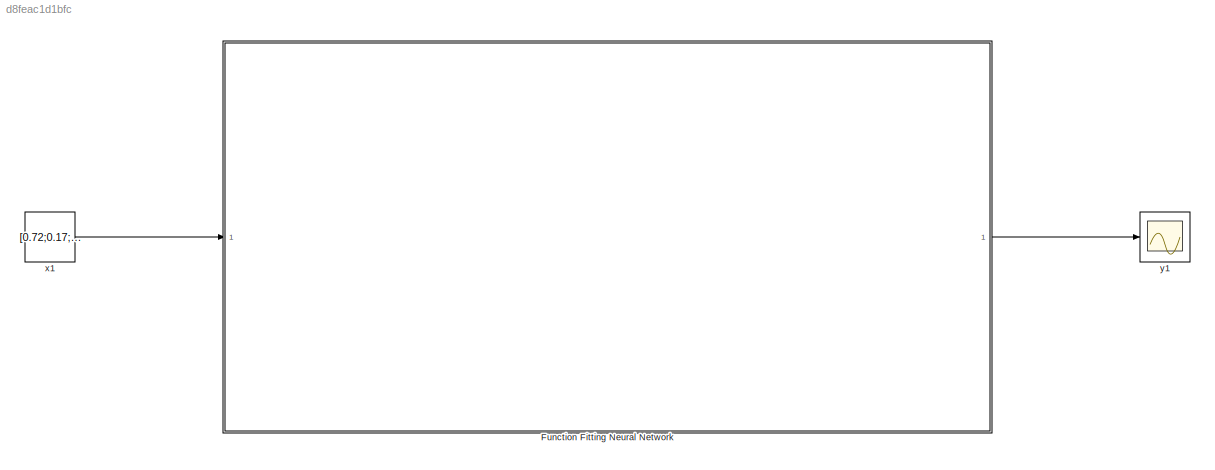
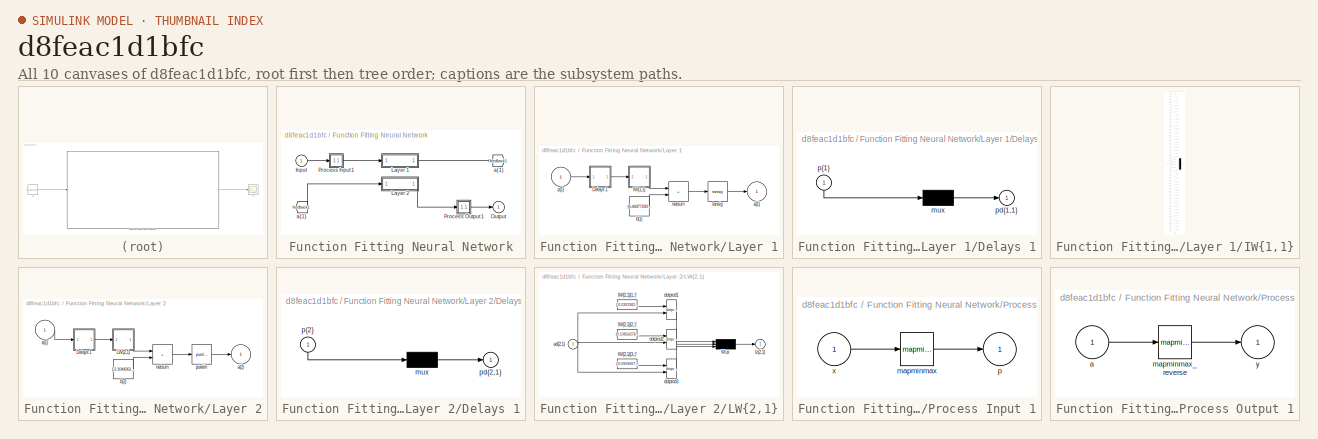
[diagram: thumbnail index - all 10 canvases of the model, root first then tree order]
MODEL slx_d8feac1d1bfc
KIND model
CONFIG AbsTol = auto
CONFIG EnableMultiTasking = off
CONFIG FixedStep = auto
CONFIG MaxStep = auto
CONFIG MinStep = auto
CONFIG RelTol = 1e-3
CONFIG SampleTimeConstraint = Unconstrained
CONFIG SolverName = VariableStepAuto
CONFIG StartTime = 0.0
CONFIG StopTime = 10.0
BLOCK [SubSystem] Function Fitting Neural Network
  Ports = [1, 1]
  RequestExecContextInheritance = off
BLOCK [From] Function Fitting Neural Network/ a{1} 
  GotoTag = feedback1
BLOCK [Inport] Function Fitting Neural Network/Input
  PortDimensions = 5
BLOCK [SubSystem] Function Fitting Neural Network/Layer 1
  Ports = [1, 1]
  RequestExecContextInheritance = off
BLOCK [SubSystem] Function Fitting Neural Network/Layer 1/Delays 1
  Ports = [1, 1]
  RequestExecContextInheritance = off
BLOCK [Mux] Function Fitting Neural Network/Layer 1/Delays 1/mux
  Inputs = 1
  Ports = [1, 1]
BLOCK [Outport] Function Fitting Neural Network/Layer 1/Delays 1/pd{1,1}
BLOCK [Inport] Function Fitting Neural Network/Layer 1/Delays 1/p{1}
  NameLocation = left
  PortDimensions = 5
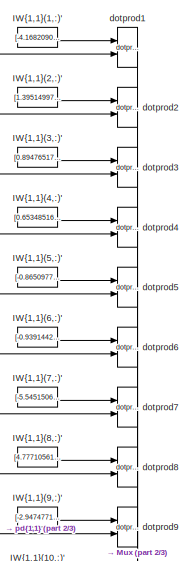
[diagram: Function Fitting Neural Network/Layer 1/IW{1,1} - part 1/3, top center region]
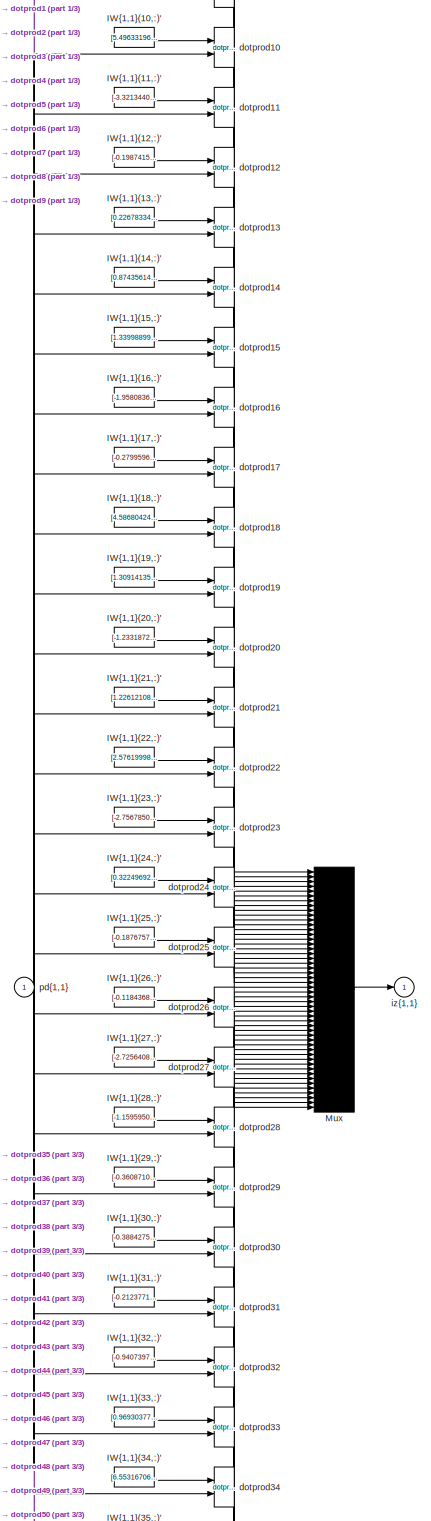
[diagram: Function Fitting Neural Network/Layer 1/IW{1,1} - part 2/3, full width, middle band]
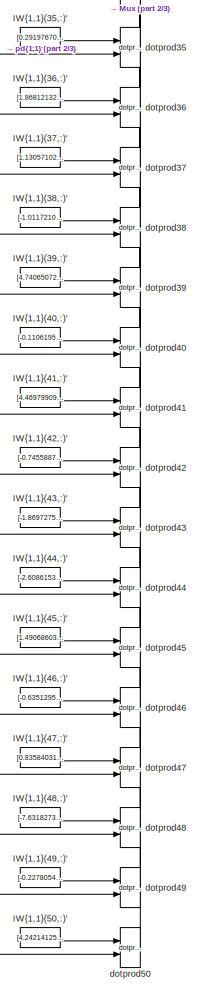
[diagram: Function Fitting Neural Network/Layer 1/IW{1,1} - part 3/3, bottom center region]
BLOCK [SubSystem] Function Fitting Neural Network/Layer 1/IW{1,1}
  Ports = [1, 1]
  RequestExecContextInheritance = off
BLOCK [Constant] Function Fitting Neural Network/Layer 1/IW{1,1}/IW{1,1}(1,:)'
  Value = [-4.16820907363957271485332967131398618221282958984375;2.541882786773931091062195264385081827640533447265625;1.581768027503744900030824283021502196788787841796875;4.2469789752246782654765411280095577239990234375;1.9557852462476734700658198562450706958770751953125]
BLOCK [Constant] Function Fitting Neural Network/Layer 1/IW{1,1}/IW{1,1}(10,:)'
  Value = [5.49633196134341606153839165926910936832427978515625;10.6847901980329762494648093706928193569183349609375;4.15494190944242003382669281563721597194671630859375;-3.5444552287029349457725402317009866237640380859375;-1.8130858594148850926330851507373154163360595703125]
BLOCK [Constant] Function Fitting Neural Network/Layer 1/IW{1,1}/IW{1,1}(11,:)'
  Value = [-3.32134401228920861370852435356937348842620849609375;-2.595258521102207449615661971620284020900726318359375;-1.531210754243391480855507325031794607639312744140625;1.22030320588501250966828592936508357524871826171875;-3.8096805860452196412779812817461788654327392578125]
BLOCK [Constant] Function Fitting Neural Network/Layer 1/IW{1,1}/IW{1,1}(12,:)'
  Value = [-0.1987415091123521104776727952412329614162445068359375;-1.290711537426080024459906780975870788097381591796875;0.757800568198310653400540104485116899013519287109375;-2.859508214847902962674197624437510967254638671875;3.64097821475625149645338751724921166896820068359375]
BLOCK [Constant] Function Fitting Neural Network/Layer 1/IW{1,1}/IW{1,1}(13,:)'
  Value = [0.22678334136748945493167184395133517682552337646484375;0.02131870179638095663676722324453294277191162109375;0.73231231611587632723825436187325976788997650146484375;0.83702749589057867662944545372738502919673919677734375;0.5844559610654267434171060813241638243198394775390625]
BLOCK [Constant] Function Fitting Neural Network/Layer 1/IW{1,1}/IW{1,1}(14,:)'
  Value = [0.8743561483243229570661014804500155150890350341796875;-0.632170059606047995970357078476808965206146240234375;-1.59700931096406595344205925357528030872344970703125;4.7894741583909468118918084655888378620147705078125;2.46183498840396008944253480876795947551727294921875]
BLOCK [Constant] Function Fitting Neural Network/Layer 1/IW{1,1}/IW{1,1}(15,:)'
  Value = [1.339988998032004996474597646738402545452117919921875;0.9628984406166181120312330676824785768985748291015625;-3.478382626160154256211853862623684108257293701171875;-0.366376396121907088598845803062431514263153076171875;-2.692552191236864178591758900438435375690460205078125]
BLOCK [Constant] Function Fitting Neural Network/Layer 1/IW{1,1}/IW{1,1}(16,:)'
  Value = [-1.958083685170446397449950381997041404247283935546875;0.1133946588584020809253871675537084229290485382080078125;0.2221054337253805244234428073468734510242938995361328125;0.27854004055729308930722254444845020771026611328125;-1.070004618512334193525248338119126856327056884765625]
BLOCK [Constant] Function Fitting Neural Network/Layer 1/IW{1,1}/IW{1,1}(17,:)'
  Value = [-0.2799596116653455535328021142049692571163177490234375;-0.005497179875329660792004915492725558578968048095703125;-0.377164780892429607472848829274880699813365936279296875;0.8694378496984371818001591236679814755916595458984375;-0.42709697135323576588916694163344800472259521484375]
BLOCK [Constant] Function Fitting Neural Network/Layer 1/IW{1,1}/IW{1,1}(18,:)'
  Value = [4.58680424429156818888486668583936989307403564453125;5.4557839825569960368056854349561035633087158203125;1.1447405792235254562427826385828666388988494873046875;-1.9638518051656859153553114083479158580303192138671875;-0.1632018472449195123363807624627952463924884796142578125]
BLOCK [Constant] Function Fitting Neural Network/Layer 1/IW{1,1}/IW{1,1}(19,:)'
  Value = [1.3091413552815287513197972657508216798305511474609375;-2.11466509291143012205793638713657855987548828125;5.2851502139083752496162560419179499149322509765625;3.582723940179032506847534023108892142772674560546875;-3.97580699981327700953670500894077122211456298828125]
BLOCK [Constant] Function Fitting Neural Network/Layer 1/IW{1,1}/IW{1,1}(2,:)'
  Value = [1.3951499731247967162062195711769163608551025390625;-0.454546945694866144638268679045722819864749908447265625;0.8682215533063455392692731038550846278667449951171875;-1.26925216252252948123668829794041812419891357421875;-0.9378314475941886829701843453221954405307769775390625]
BLOCK [Constant] Function Fitting Neural Network/Layer 1/IW{1,1}/IW{1,1}(20,:)'
  Value = [-1.233187287176878754735298571176826953887939453125;-1.4077532946106270372865765239112079143524169921875;1.1021642724863742746066463951137848198413848876953125;-0.94779301522668590873621496939449571073055267333984375;0.930487688454931127779445887426845729351043701171875]
BLOCK [Constant] Function Fitting Neural Network/Layer 1/IW{1,1}/IW{1,1}(21,:)'
  Value = [1.22612108752971860070601906045340001583099365234375;2.69983180142598566675360416411422193050384521484375;-1.147539396316329174396742018871009349822998046875;1.9219087266635839217343573182006366550922393798828125;1.77129702303915426142566502676345407962799072265625]
BLOCK [Constant] Function Fitting Neural Network/Layer 1/IW{1,1}/IW{1,1}(22,:)'
  Value = [2.57619998189668475419011883786879479885101318359375;2.7814793034058826748378123738802969455718994140625;2.629364630216236786708350336994044482707977294921875;3.114678192060041705957473823218606412410736083984375;3.946635244549082432996556235593743622303009033203125]
BLOCK [Constant] Function Fitting Neural Network/Layer 1/IW{1,1}/IW{1,1}(23,:)'
  Value = [-2.75678509810810368207967258058488368988037109375;-2.32537100274720831549757349421270191669464111328125;4.62781744877961198625371253001503646373748779296875;-5.69260200698623908266426951740868389606475830078125;0.8488659828669697926528669995605014264583587646484375]
BLOCK [Constant] Function Fitting Neural Network/Layer 1/IW{1,1}/IW{1,1}(24,:)'
  Value = [0.322496920127222475027650716583593748509883880615234375;-6.003187228239585948585954611189663410186767578125;2.62707939283803160179786573280580341815948486328125;-4.5417138627207283008146987413056194782257080078125;3.196162508098566501502091341535560786724090576171875]
BLOCK [Constant] Function Fitting Neural Network/Layer 1/IW{1,1}/IW{1,1}(25,:)'
  Value = [-0.18767576439800770504717775111203081905841827392578125;0.40464393299708945050952024757862091064453125;1.73934895877950079778884173720143735408782958984375;0.4223353302401624542739000389701686799526214599609375;-1.1431649890919430845315218903124332427978515625]
BLOCK [Constant] Function Fitting Neural Network/Layer 1/IW{1,1}/IW{1,1}(26,:)'
  Value = [-0.118436828106603553312226040361565537750720977783203125;0.20401237372271785464050708469585515558719635009765625;0.26808540451177964580864454546826891601085662841796875;0.0832457309078548923775286993986810557544231414794921875;-0.262187850409170086773968932902789674699306488037109375]
BLOCK [Constant] Function Fitting Neural Network/Layer 1/IW{1,1}/IW{1,1}(27,:)'
  Value = [-2.725640819478535537001562261139042675495147705078125;0.401858576410446144411281466091168113052845001220703125;-0.95192092135731354307637275269371457397937774658203125;4.26247019527412174255687205004505813121795654296875;1.4254596952144551469388034092844463884830474853515625]
BLOCK [Constant] Function Fitting Neural Network/Layer 1/IW{1,1}/IW{1,1}(28,:)'
  Value = [-1.1595950335184621593498377478681504726409912109375;-7.9454798056532656147510351729579269886016845703125;-6.12943650571449705211080072331242263317108154296875;1.562557414424370794137075790786184370517730712890625;0.5781485155962930999606896875775419175624847412109375]
BLOCK [Constant] Function Fitting Neural Network/Layer 1/IW{1,1}/IW{1,1}(29,:)'
  Value = [-0.360871082659472930398436574250808916985988616943359375;3.05133801884801858506079952348954975605010986328125;-1.3520547394716846412165978108532726764678955078125;-2.089162545783299851365200083819217979907989501953125;-4.46475682286495878514642754453234374523162841796875]
BLOCK [Constant] Function Fitting Neural Network/Layer 1/IW{1,1}/IW{1,1}(3,:)'
  Value = [0.89476517383032561081535050107049755752086639404296875;0.8873499367846318097718949502450414001941680908203125;-1.552682949233788800569300292409025132656097412109375;-1.03774745819400227020423699286766350269317626953125;2.0536673165297418819363883812911808490753173828125]
BLOCK [Constant] Function Fitting Neural Network/Layer 1/IW{1,1}/IW{1,1}(30,:)'
  Value = [-0.388427558663993532928060403719427995383739471435546875;-1.5257793007627824533045668431441299617290496826171875;0.42363845882158501776615366907208226621150970458984375;-1.6224729022383730381307032075710594654083251953125;-1.757736004617498792867991141974925994873046875]
BLOCK [Constant] Function Fitting Neural Network/Layer 1/IW{1,1}/IW{1,1}(31,:)'
  Value = [-0.212377128235736900574437413524719886481761932373046875;1.0749516481796745903665168953011743724346160888671875;1.89588464825657165846450880053453147411346435546875;1.6786779680107064560701246591634117066860198974609375;1.473424518024794682702349746250547468662261962890625]
BLOCK [Constant] Function Fitting Neural Network/Layer 1/IW{1,1}/IW{1,1}(32,:)'
  Value = [-0.9407397849058793948273660134873352944850921630859375;-1.0565271872013537457490883753052912652492523193359375;1.87886289528078709309966143337078392505645751953125;0.167231678050725474093951561371795833110809326171875;-0.61740511551444499094287721163709647953510284423828125]
BLOCK [Constant] Function Fitting Neural Network/Layer 1/IW{1,1}/IW{1,1}(33,:)'
  Value = [0.96930377720851568223991989725618623197078704833984375;-2.325129468629168361104575524223037064075469970703125;5.1538886883938577199160135933198034763336181640625;2.8992875333818002303587491041980683803558349609375;1.8585780866238525987910179537720978260040283203125]
BLOCK [Constant] Function Fitting Neural Network/Layer 1/IW{1,1}/IW{1,1}(34,:)'
  Value = [6.5531670657000606894371230737306177616119384765625;-5.08410219275545660622128707473166286945343017578125;-3.253748970965505638019976686337031424045562744140625;2.35577071587532937968489932245574891567230224609375;5.33846197858585558293498252169229090213775634765625]
BLOCK [Constant] Function Fitting Neural Network/Layer 1/IW{1,1}/IW{1,1}(35,:)'
  Value = [0.291976700599510918809897930259467102587223052978515625;-1.723612609539671769454116656561382114887237548828125;6.40082623967573116630092044943012297153472900390625;-0.0528696918814886007709219484240747988224029541015625;-0.2358166132735529385566763949100277386605739593505859375]
BLOCK [Constant] Function Fitting Neural Network/Layer 1/IW{1,1}/IW{1,1}(36,:)'
  Value = [1.8681213285954658687160190311260521411895751953125;0.19122903193814833056052293613902293145656585693359375;0.1448037667502071190739343364839442074298858642578125;0.61415362843576681850521481464966200292110443115234375;3.07305909206476624007109421654604375362396240234375]
BLOCK [Constant] Function Fitting Neural Network/Layer 1/IW{1,1}/IW{1,1}(37,:)'
  Value = [1.130571023129204544233061824343167245388031005859375;2.9798008028314253436974468058906495571136474609375;-1.24452371871822986548750122892670333385467529296875;0.831776806391783640748371908557601273059844970703125;-2.53562776690992119910106339375488460063934326171875]
BLOCK [Constant] Function Fitting Neural Network/Layer 1/IW{1,1}/IW{1,1}(38,:)'
  Value = [-1.01172104515173888472645558067597448825836181640625;-1.35552482255783868225762489601038396358489990234375;2.475178394160455042083412990905344486236572265625;-0.7616949455941954827409290373907424509525299072265625;-0.0326286165765984625952711439822451211512088775634765625]
BLOCK [Constant] Function Fitting Neural Network/Layer 1/IW{1,1}/IW{1,1}(39,:)'
  Value = [4.74065072477746607404469614266417920589447021484375;4.5984946870858767198342320625670254230499267578125;3.563684768599687746615245487191714346408843994140625;1.22454620595703289609446073882281780242919921875;1.062761867631061729611019472940824925899505615234375]
BLOCK [Constant] Function Fitting Neural Network/Layer 1/IW{1,1}/IW{1,1}(4,:)'
  Value = [0.65348516860312610976535552254063077270984649658203125;-2.460446828789155659933385322801768779754638671875;2.175760357018881929747067260905168950557708740234375;0.437083294649695031086622520888340659439563751220703125;-0.5367850042216388839477758665452711284160614013671875]
BLOCK [Constant] Function Fitting Neural Network/Layer 1/IW{1,1}/IW{1,1}(40,:)'
  Value = [-0.1106195722132393421954787982031120918691158294677734375;-0.2335528192081250120626378929955535568296909332275390625;-0.90634723404631500898176454938948154449462890625;-0.048041728702593766708872635717852972447872161865234375;-0.27089988099079642669408940491848625242710113525390625]
BLOCK [Constant] Function Fitting Neural Network/Layer 1/IW{1,1}/IW{1,1}(41,:)'
  Value = [4.46979909785126405807886840193532407283782958984375;0.093742546537248949700682487673475407063961029052734375;-0.9239524284524971431409312572213821113109588623046875;1.91922665559668548240779273328371345996856689453125;-0.59701470256582622742058674703002907335758209228515625]
BLOCK [Constant] Function Fitting Neural Network/Layer 1/IW{1,1}/IW{1,1}(42,:)'
  Value = [-0.74558870460900983356822280256892554461956024169921875;-1.995027554775462785841000368236564099788665771484375;-0.8112499382320097485177257112809456884860992431640625;-0.390011528536168494696312336600385606288909912109375;-0.0257101303936952962914119780180044472217559814453125]
BLOCK [Constant] Function Fitting Neural Network/Layer 1/IW{1,1}/IW{1,1}(43,:)'
  Value = [-1.86972755386405342648004079819656908512115478515625;-5.5777367539705640098190997377969324588775634765625;-0.72402876907771329673124682813067920506000518798828125;-1.665143817841245432731511755264364182949066162109375;1.9735155813844951211422085179947316646575927734375]
BLOCK [Constant] Function Fitting Neural Network/Layer 1/IW{1,1}/IW{1,1}(44,:)'
  Value = [-2.608615331101546974679195045609958469867706298828125;-2.7404230576620580706048713182099163532257080078125;-1.750693307052379577015699396724812686443328857421875;3.3282500694353647219259073608554899692535400390625;-4.808971214849560027460029232315719127655029296875]
BLOCK [Constant] Function Fitting Neural Network/Layer 1/IW{1,1}/IW{1,1}(45,:)'
  Value = [1.490686039228951376145460017141886055469512939453125;-2.288462194669794058654588297940790653228759765625;0.474620267029386477819485889995121397078037261962890625;-2.722198417394186886753004728234373033046722412109375;-0.377979904710786185351167887347401119768619537353515625]
BLOCK [Constant] Function Fitting Neural Network/Layer 1/IW{1,1}/IW{1,1}(46,:)'
  Value = [-0.635129582060729003245569401769898831844329833984375;-2.895126796202422969628287319210357964038848876953125;2.78466032438338562116086905007250607013702392578125;-1.4948789706504987950808072127983905375003814697265625;-0.99398735086005896022243177867494523525238037109375]
BLOCK [Constant] Function Fitting Neural Network/Layer 1/IW{1,1}/IW{1,1}(47,:)'
  Value = [0.83584031333906938510125428365427069365978240966796875;1.6891750553072599760895400322624482214450836181640625;-2.108988596216541555605772373382933437824249267578125;-2.014105598644099881511237981612794101238250732421875;-5.62443438459923594763267828966490924358367919921875]
BLOCK [Constant] Function Fitting Neural Network/Layer 1/IW{1,1}/IW{1,1}(48,:)'
  Value = [-7.63182739296346568380613462068140506744384765625;-4.8318226836207625041197388782165944576263427734375;-10.3343177236249790240663060103543102741241455078125;-2.74364765563166823625351753435097634792327880859375;-2.24544089372505339952112990431487560272216796875]
BLOCK [Constant] Function Fitting Neural Network/Layer 1/IW{1,1}/IW{1,1}(49,:)'
  Value = [-0.22780547059502131990171847064630128443241119384765625;4.18081544921494252520233203540556132793426513671875;-5.47434253809924609157633312861435115337371826171875;-0.1842228310072825669951868121643201448023319244384765625;-0.4652689288257880750876438469276763498783111572265625]
BLOCK [Constant] Function Fitting Neural Network/Layer 1/IW{1,1}/IW{1,1}(5,:)'
  Value = [-0.86509778452754115818379432312212884426116943359375;-2.26793998722629996933619622723199427127838134765625;-2.03174494952886419696369557641446590423583984375;1.73570756190574826405281783081591129302978515625;5.75683863628620695607196466880850493907928466796875]
BLOCK [Constant] Function Fitting Neural Network/Layer 1/IW{1,1}/IW{1,1}(50,:)'
  Value = [4.24214125073969849921695640659891068935394287109375;9.83237582957779210346416221000254154205322265625;6.5965462723952068557764505385421216487884521484375;-1.494620124110880521328681425075046718120574951171875;-1.52632692021891802625077616539783775806427001953125]
BLOCK [Constant] Function Fitting Neural Network/Layer 1/IW{1,1}/IW{1,1}(6,:)'
  Value = [-0.9391442862556076409674687965889461338520050048828125;-1.3712131864092012012434906864655204117298126220703125;0.79169700389516706184878103158553130924701690673828125;-1.541534219238839487076120349229313433170318603515625;1.325847302598074151092077954672276973724365234375]
BLOCK [Constant] Function Fitting Neural Network/Layer 1/IW{1,1}/IW{1,1}(7,:)'
  Value = [-5.5451506976531472759006646811030805110931396484375;-6.37880186793722803173523061559535562992095947265625;-5.83476650305185717826361724291928112506866455078125;-2.76758478211765801546562215662561357021331787109375;0.511473536516854121458663939847610890865325927734375]
BLOCK [Constant] Function Fitting Neural Network/Layer 1/IW{1,1}/IW{1,1}(8,:)'
  Value = [4.7771056120879880069196588010527193546295166015625;1.92121922385125998289367998950183391571044921875;-4.77097781989440505867605679668486118316650390625;3.613714098282361675273932632990181446075439453125;-2.398494932006513646882694956730119884014129638671875]
BLOCK [Constant] Function Fitting Neural Network/Layer 1/IW{1,1}/IW{1,1}(9,:)'
  Value = [-2.947477192170496085310560374637134373188018798828125;2.639502156417523170972572188475169241428375244140625;1.293956608399465579850584617815911769866943359375;-1.01003910021511789096848588087595999240875244140625;-0.97204373751527517466541894464171491563320159912109375]
BLOCK [Mux] Function Fitting Neural Network/Layer 1/IW{1,1}/Mux
  Inputs = 50
  Ports = [50, 1]
BLOCK [Reference] Function Fitting Neural Network/Layer 1/IW{1,1}/dotprod1  REF=neural/Weight Functions/dotprod
  Ports = [2, 1]
  SourceBlock = neural/Weight Functions/dotprod
  SourceProductBaseCode = NN
  SourceType = DOTPROD
BLOCK [Reference] Function Fitting Neural Network/Layer 1/IW{1,1}/dotprod10  REF=neural/Weight Functions/dotprod
  Ports = [2, 1]
  SourceBlock = neural/Weight Functions/dotprod
  SourceProductBaseCode = NN
  SourceType = DOTPROD
BLOCK [Reference] Function Fitting Neural Network/Layer 1/IW{1,1}/dotprod11  REF=neural/Weight Functions/dotprod
  Ports = [2, 1]
  SourceBlock = neural/Weight Functions/dotprod
  SourceProductBaseCode = NN
  SourceType = DOTPROD
BLOCK [Reference] Function Fitting Neural Network/Layer 1/IW{1,1}/dotprod12  REF=neural/Weight Functions/dotprod
  Ports = [2, 1]
  SourceBlock = neural/Weight Functions/dotprod
  SourceProductBaseCode = NN
  SourceType = DOTPROD
BLOCK [Reference] Function Fitting Neural Network/Layer 1/IW{1,1}/dotprod13  REF=neural/Weight Functions/dotprod
  Ports = [2, 1]
  SourceBlock = neural/Weight Functions/dotprod
  SourceProductBaseCode = NN
  SourceType = DOTPROD
BLOCK [Reference] Function Fitting Neural Network/Layer 1/IW{1,1}/dotprod14  REF=neural/Weight Functions/dotprod
  Ports = [2, 1]
  SourceBlock = neural/Weight Functions/dotprod
  SourceProductBaseCode = NN
  SourceType = DOTPROD
BLOCK [Reference] Function Fitting Neural Network/Layer 1/IW{1,1}/dotprod15  REF=neural/Weight Functions/dotprod
  Ports = [2, 1]
  SourceBlock = neural/Weight Functions/dotprod
  SourceProductBaseCode = NN
  SourceType = DOTPROD
BLOCK [Reference] Function Fitting Neural Network/Layer 1/IW{1,1}/dotprod16  REF=neural/Weight Functions/dotprod
  Ports = [2, 1]
  SourceBlock = neural/Weight Functions/dotprod
  SourceProductBaseCode = NN
  SourceType = DOTPROD
BLOCK [Reference] Function Fitting Neural Network/Layer 1/IW{1,1}/dotprod17  REF=neural/Weight Functions/dotprod
  Ports = [2, 1]
  SourceBlock = neural/Weight Functions/dotprod
  SourceProductBaseCode = NN
  SourceType = DOTPROD
BLOCK [Reference] Function Fitting Neural Network/Layer 1/IW{1,1}/dotprod18  REF=neural/Weight Functions/dotprod
  Ports = [2, 1]
  SourceBlock = neural/Weight Functions/dotprod
  SourceProductBaseCode = NN
  SourceType = DOTPROD
BLOCK [Reference] Function Fitting Neural Network/Layer 1/IW{1,1}/dotprod19  REF=neural/Weight Functions/dotprod
  Ports = [2, 1]
  SourceBlock = neural/Weight Functions/dotprod
  SourceProductBaseCode = NN
  SourceType = DOTPROD
BLOCK [Reference] Function Fitting Neural Network/Layer 1/IW{1,1}/dotprod2  REF=neural/Weight Functions/dotprod
  Ports = [2, 1]
  SourceBlock = neural/Weight Functions/dotprod
  SourceProductBaseCode = NN
  SourceType = DOTPROD
BLOCK [Reference] Function Fitting Neural Network/Layer 1/IW{1,1}/dotprod20  REF=neural/Weight Functions/dotprod
  Ports = [2, 1]
  SourceBlock = neural/Weight Functions/dotprod
  SourceProductBaseCode = NN
  SourceType = DOTPROD
BLOCK [Reference] Function Fitting Neural Network/Layer 1/IW{1,1}/dotprod21  REF=neural/Weight Functions/dotprod
  Ports = [2, 1]
  SourceBlock = neural/Weight Functions/dotprod
  SourceProductBaseCode = NN
  SourceType = DOTPROD
BLOCK [Reference] Function Fitting Neural Network/Layer 1/IW{1,1}/dotprod22  REF=neural/Weight Functions/dotprod
  Ports = [2, 1]
  SourceBlock = neural/Weight Functions/dotprod
  SourceProductBaseCode = NN
  SourceType = DOTPROD
BLOCK [Reference] Function Fitting Neural Network/Layer 1/IW{1,1}/dotprod23  REF=neural/Weight Functions/dotprod
  Ports = [2, 1]
  SourceBlock = neural/Weight Functions/dotprod
  SourceProductBaseCode = NN
  SourceType = DOTPROD
BLOCK [Reference] Function Fitting Neural Network/Layer 1/IW{1,1}/dotprod24  REF=neural/Weight Functions/dotprod
  Ports = [2, 1]
  SourceBlock = neural/Weight Functions/dotprod
  SourceProductBaseCode = NN
  SourceType = DOTPROD
BLOCK [Reference] Function Fitting Neural Network/Layer 1/IW{1,1}/dotprod25  REF=neural/Weight Functions/dotprod
  Ports = [2, 1]
  SourceBlock = neural/Weight Functions/dotprod
  SourceProductBaseCode = NN
  SourceType = DOTPROD
BLOCK [Reference] Function Fitting Neural Network/Layer 1/IW{1,1}/dotprod26  REF=neural/Weight Functions/dotprod
  Ports = [2, 1]
  SourceBlock = neural/Weight Functions/dotprod
  SourceProductBaseCode = NN
  SourceType = DOTPROD
BLOCK [Reference] Function Fitting Neural Network/Layer 1/IW{1,1}/dotprod27  REF=neural/Weight Functions/dotprod
  Ports = [2, 1]
  SourceBlock = neural/Weight Functions/dotprod
  SourceProductBaseCode = NN
  SourceType = DOTPROD
BLOCK [Reference] Function Fitting Neural Network/Layer 1/IW{1,1}/dotprod28  REF=neural/Weight Functions/dotprod
  Ports = [2, 1]
  SourceBlock = neural/Weight Functions/dotprod
  SourceProductBaseCode = NN
  SourceType = DOTPROD
BLOCK [Reference] Function Fitting Neural Network/Layer 1/IW{1,1}/dotprod29  REF=neural/Weight Functions/dotprod
  Ports = [2, 1]
  SourceBlock = neural/Weight Functions/dotprod
  SourceProductBaseCode = NN
  SourceType = DOTPROD
BLOCK [Reference] Function Fitting Neural Network/Layer 1/IW{1,1}/dotprod3  REF=neural/Weight Functions/dotprod
  Ports = [2, 1]
  SourceBlock = neural/Weight Functions/dotprod
  SourceProductBaseCode = NN
  SourceType = DOTPROD
BLOCK [Reference] Function Fitting Neural Network/Layer 1/IW{1,1}/dotprod30  REF=neural/Weight Functions/dotprod
  Ports = [2, 1]
  SourceBlock = neural/Weight Functions/dotprod
  SourceProductBaseCode = NN
  SourceType = DOTPROD
BLOCK [Reference] Function Fitting Neural Network/Layer 1/IW{1,1}/dotprod31  REF=neural/Weight Functions/dotprod
  Ports = [2, 1]
  SourceBlock = neural/Weight Functions/dotprod
  SourceProductBaseCode = NN
  SourceType = DOTPROD
BLOCK [Reference] Function Fitting Neural Network/Layer 1/IW{1,1}/dotprod32  REF=neural/Weight Functions/dotprod
  Ports = [2, 1]
  SourceBlock = neural/Weight Functions/dotprod
  SourceProductBaseCode = NN
  SourceType = DOTPROD
BLOCK [Reference] Function Fitting Neural Network/Layer 1/IW{1,1}/dotprod33  REF=neural/Weight Functions/dotprod
  Ports = [2, 1]
  SourceBlock = neural/Weight Functions/dotprod
  SourceProductBaseCode = NN
  SourceType = DOTPROD
BLOCK [Reference] Function Fitting Neural Network/Layer 1/IW{1,1}/dotprod34  REF=neural/Weight Functions/dotprod
  Ports = [2, 1]
  SourceBlock = neural/Weight Functions/dotprod
  SourceProductBaseCode = NN
  SourceType = DOTPROD
BLOCK [Reference] Function Fitting Neural Network/Layer 1/IW{1,1}/dotprod35  REF=neural/Weight Functions/dotprod
  Ports = [2, 1]
  SourceBlock = neural/Weight Functions/dotprod
  SourceProductBaseCode = NN
  SourceType = DOTPROD
BLOCK [Reference] Function Fitting Neural Network/Layer 1/IW{1,1}/dotprod36  REF=neural/Weight Functions/dotprod
  Ports = [2, 1]
  SourceBlock = neural/Weight Functions/dotprod
  SourceProductBaseCode = NN
  SourceType = DOTPROD
BLOCK [Reference] Function Fitting Neural Network/Layer 1/IW{1,1}/dotprod37  REF=neural/Weight Functions/dotprod
  Ports = [2, 1]
  SourceBlock = neural/Weight Functions/dotprod
  SourceProductBaseCode = NN
  SourceType = DOTPROD
BLOCK [Reference] Function Fitting Neural Network/Layer 1/IW{1,1}/dotprod38  REF=neural/Weight Functions/dotprod
  Ports = [2, 1]
  SourceBlock = neural/Weight Functions/dotprod
  SourceProductBaseCode = NN
  SourceType = DOTPROD
BLOCK [Reference] Function Fitting Neural Network/Layer 1/IW{1,1}/dotprod39  REF=neural/Weight Functions/dotprod
  Ports = [2, 1]
  SourceBlock = neural/Weight Functions/dotprod
  SourceProductBaseCode = NN
  SourceType = DOTPROD
BLOCK [Reference] Function Fitting Neural Network/Layer 1/IW{1,1}/dotprod4  REF=neural/Weight Functions/dotprod
  Ports = [2, 1]
  SourceBlock = neural/Weight Functions/dotprod
  SourceProductBaseCode = NN
  SourceType = DOTPROD
BLOCK [Reference] Function Fitting Neural Network/Layer 1/IW{1,1}/dotprod40  REF=neural/Weight Functions/dotprod
  Ports = [2, 1]
  SourceBlock = neural/Weight Functions/dotprod
  SourceProductBaseCode = NN
  SourceType = DOTPROD
BLOCK [Reference] Function Fitting Neural Network/Layer 1/IW{1,1}/dotprod41  REF=neural/Weight Functions/dotprod
  Ports = [2, 1]
  SourceBlock = neural/Weight Functions/dotprod
  SourceProductBaseCode = NN
  SourceType = DOTPROD
BLOCK [Reference] Function Fitting Neural Network/Layer 1/IW{1,1}/dotprod42  REF=neural/Weight Functions/dotprod
  Ports = [2, 1]
  SourceBlock = neural/Weight Functions/dotprod
  SourceProductBaseCode = NN
  SourceType = DOTPROD
BLOCK [Reference] Function Fitting Neural Network/Layer 1/IW{1,1}/dotprod43  REF=neural/Weight Functions/dotprod
  Ports = [2, 1]
  SourceBlock = neural/Weight Functions/dotprod
  SourceProductBaseCode = NN
  SourceType = DOTPROD
BLOCK [Reference] Function Fitting Neural Network/Layer 1/IW{1,1}/dotprod44  REF=neural/Weight Functions/dotprod
  Ports = [2, 1]
  SourceBlock = neural/Weight Functions/dotprod
  SourceProductBaseCode = NN
  SourceType = DOTPROD
BLOCK [Reference] Function Fitting Neural Network/Layer 1/IW{1,1}/dotprod45  REF=neural/Weight Functions/dotprod
  Ports = [2, 1]
  SourceBlock = neural/Weight Functions/dotprod
  SourceProductBaseCode = NN
  SourceType = DOTPROD
BLOCK [Reference] Function Fitting Neural Network/Layer 1/IW{1,1}/dotprod46  REF=neural/Weight Functions/dotprod
  Ports = [2, 1]
  SourceBlock = neural/Weight Functions/dotprod
  SourceProductBaseCode = NN
  SourceType = DOTPROD
BLOCK [Reference] Function Fitting Neural Network/Layer 1/IW{1,1}/dotprod47  REF=neural/Weight Functions/dotprod
  Ports = [2, 1]
  SourceBlock = neural/Weight Functions/dotprod
  SourceProductBaseCode = NN
  SourceType = DOTPROD
BLOCK [Reference] Function Fitting Neural Network/Layer 1/IW{1,1}/dotprod48  REF=neural/Weight Functions/dotprod
  Ports = [2, 1]
  SourceBlock = neural/Weight Functions/dotprod
  SourceProductBaseCode = NN
  SourceType = DOTPROD
BLOCK [Reference] Function Fitting Neural Network/Layer 1/IW{1,1}/dotprod49  REF=neural/Weight Functions/dotprod
  Ports = [2, 1]
  SourceBlock = neural/Weight Functions/dotprod
  SourceProductBaseCode = NN
  SourceType = DOTPROD
BLOCK [Reference] Function Fitting Neural Network/Layer 1/IW{1,1}/dotprod5  REF=neural/Weight Functions/dotprod
  Ports = [2, 1]
  SourceBlock = neural/Weight Functions/dotprod
  SourceProductBaseCode = NN
  SourceType = DOTPROD
BLOCK [Reference] Function Fitting Neural Network/Layer 1/IW{1,1}/dotprod50  REF=neural/Weight Functions/dotprod
  Ports = [2, 1]
  SourceBlock = neural/Weight Functions/dotprod
  SourceProductBaseCode = NN
  SourceType = DOTPROD
BLOCK [Reference] Function Fitting Neural Network/Layer 1/IW{1,1}/dotprod6  REF=neural/Weight Functions/dotprod
  Ports = [2, 1]
  SourceBlock = neural/Weight Functions/dotprod
  SourceProductBaseCode = NN
  SourceType = DOTPROD
BLOCK [Reference] Function Fitting Neural Network/Layer 1/IW{1,1}/dotprod7  REF=neural/Weight Functions/dotprod
  Ports = [2, 1]
  SourceBlock = neural/Weight Functions/dotprod
  SourceProductBaseCode = NN
  SourceType = DOTPROD
BLOCK [Reference] Function Fitting Neural Network/Layer 1/IW{1,1}/dotprod8  REF=neural/Weight Functions/dotprod
  Ports = [2, 1]
  SourceBlock = neural/Weight Functions/dotprod
  SourceProductBaseCode = NN
  SourceType = DOTPROD
BLOCK [Reference] Function Fitting Neural Network/Layer 1/IW{1,1}/dotprod9  REF=neural/Weight Functions/dotprod
  Ports = [2, 1]
  SourceBlock = neural/Weight Functions/dotprod
  SourceProductBaseCode = NN
  SourceType = DOTPROD
BLOCK [Outport] Function Fitting Neural Network/Layer 1/IW{1,1}/iz{1,1}
BLOCK [Inport] Function Fitting Neural Network/Layer 1/IW{1,1}/pd{1,1}
  PortDimensions = 5
BLOCK [Outport] Function Fitting Neural Network/Layer 1/a{1}
  InitialOutput = [0;0;0;0;0;0;0;0;0;0;0;0;0;0;0;0;0;0;0;0;0;0;0;0;0;0;0;0;0;0;0;0;0;0;0;0;0;0;0;0;0;0;0;0;0;0;0;0;0;0]
BLOCK [Constant] Function Fitting Neural Network/Layer 1/b{1}
  Value = [6.44477183646734630428909440524876117706298828125;-2.326466621678136004192083419184200465679168701171875;-3.232363435363184489546028999029658734798431396484375;1.45084355485821436815285778720863163471221923828125;7.95100347251249051083732410916127264499664306640625;-0.2554168530288711824738356881425715982913970947265625;4.55021081636440971607271421817131340503692626953125;-2.421513726681057132594...<+2329ch>
BLOCK [Sum] Function Fitting Neural Network/Layer 1/netsum
  IconShape = rectangular
  InputSameDT = on
  Inputs = 2
  OutDataTypeStr = Inherit: Same as first input
  Ports = [2, 1]
  SaturateOnIntegerOverflow = on
BLOCK [Inport] Function Fitting Neural Network/Layer 1/p{1}
  PortDimensions = 5
BLOCK [Reference] Function Fitting Neural Network/Layer 1/tansig  REF=neural/Transfer Functions/tansig
  Ports = [1, 1]
  SourceBlock = neural/Transfer Functions/tansig
  SourceProductBaseCode = NN
  SourceType = TANSIG
BLOCK [SubSystem] Function Fitting Neural Network/Layer 2
  Ports = [1, 1]
  RequestExecContextInheritance = off
BLOCK [SubSystem] Function Fitting Neural Network/Layer 2/Delays 1
  Ports = [1, 1]
  RequestExecContextInheritance = off
BLOCK [Mux] Function Fitting Neural Network/Layer 2/Delays 1/mux
  Inputs = 1
  Ports = [1, 1]
BLOCK [Outport] Function Fitting Neural Network/Layer 2/Delays 1/pd{2,1}
BLOCK [Inport] Function Fitting Neural Network/Layer 2/Delays 1/p{2}
  NameLocation = left
  PortDimensions = 50
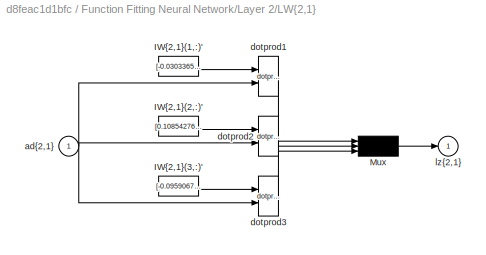
BLOCK [SubSystem] Function Fitting Neural Network/Layer 2/LW{2,1}
  Ports = [1, 1]
  RequestExecContextInheritance = off
BLOCK [Constant] Function Fitting Neural Network/Layer 2/LW{2,1}/IW{2,1}(1,:)'
  Value = [-0.030336535880642667706297288532368838787078857421875;-0.056039902042742749388448686431729584001004695892333984375;0.360855970861353514411717924303957261145114898681640625;0.48866082200590577055976382325752638280391693115234375;0.0102889822954747855998647310116211883723735809326171875;-0.518626994384571826657293058815412223339080810546875;-0.279756323345283053338761192208039574325084686279296875...<+2452ch>
BLOCK [Constant] Function Fitting Neural Network/Layer 2/LW{2,1}/IW{2,1}(2,:)'
  Value = [0.10854276180591186651280821706677670590579509735107421875;0.186956735295499443250122340032248757779598236083984375;1.012890560398770123384792896104045212268829345703125;0.002371342273922917576189917099327431060373783111572265625;0.1901929492633211982166585585218854248523712158203125;-0.457086643868093001064067948391311801970005035400390625;-0.05931548787570833924931434921745676547288894653320312...<+2476ch>
BLOCK [Constant] Function Fitting Neural Network/Layer 2/LW{2,1}/IW{2,1}(3,:)'
  Value = [-0.0959067736980395990631365066292346455156803131103515625;-0.078373749982505847011537980506545864045619964599609375;-0.83156361446387083713460697254049591720104217529296875;0.2433389369890023579134918918498442508280277252197265625;-0.25863650392163151092717043866286985576152801513671875;0.316614545929362611875745869838283397257328033447265625;0.0637758422492868959352563251741230487823486328125;-...<+2472ch>
BLOCK [Mux] Function Fitting Neural Network/Layer 2/LW{2,1}/Mux
  Inputs = 3
  Ports = [3, 1]
BLOCK [Inport] Function Fitting Neural Network/Layer 2/LW{2,1}/ad{2,1}
  PortDimensions = 50
BLOCK [Reference] Function Fitting Neural Network/Layer 2/LW{2,1}/dotprod1  REF=neural/Weight Functions/dotprod
  Ports = [2, 1]
  SourceBlock = neural/Weight Functions/dotprod
  SourceProductBaseCode = NN
  SourceType = DOTPROD
BLOCK [Reference] Function Fitting Neural Network/Layer 2/LW{2,1}/dotprod2  REF=neural/Weight Functions/dotprod
  Ports = [2, 1]
  SourceBlock = neural/Weight Functions/dotprod
  SourceProductBaseCode = NN
  SourceType = DOTPROD
BLOCK [Reference] Function Fitting Neural Network/Layer 2/LW{2,1}/dotprod3  REF=neural/Weight Functions/dotprod
  Ports = [2, 1]
  SourceBlock = neural/Weight Functions/dotprod
  SourceProductBaseCode = NN
  SourceType = DOTPROD
BLOCK [Outport] Function Fitting Neural Network/Layer 2/LW{2,1}/lz{2,1}
BLOCK [Inport] Function Fitting Neural Network/Layer 2/a{1} 
  PortDimensions = 50
BLOCK [Outport] Function Fitting Neural Network/Layer 2/a{2}
  InitialOutput = [0;0;0]
BLOCK [Constant] Function Fitting Neural Network/Layer 2/b{2}
  Value = [-2.104426119733290079238940961658954620361328125;0.56276188052873410416765409536310471594333648681640625;0.6919300431113375449143632067716680467128753662109375]
BLOCK [Sum] Function Fitting Neural Network/Layer 2/netsum
  IconShape = rectangular
  InputSameDT = on
  Inputs = 2
  OutDataTypeStr = Inherit: Same as first input
  Ports = [2, 1]
  SaturateOnIntegerOverflow = on
BLOCK [Reference] Function Fitting Neural Network/Layer 2/purelin  REF=neural/Transfer Functions/purelin
  Ports = [1, 1]
  SourceBlock = neural/Transfer Functions/purelin
  SourceProductBaseCode = NN
  SourceType = PURELIN
BLOCK [Outport] Function Fitting Neural Network/Output
  InitialOutput = [0;0;0]
BLOCK [SubSystem] Function Fitting Neural Network/Process Input 1
  Ports = [1, 1]
  RequestExecContextInheritance = off
BLOCK [Reference] Function Fitting Neural Network/Process Input 1/mapminmax  REF=neural/Processing Functions/mapminmax
  Ports = [1, 1]
  SourceBlock = neural/Processing Functions/mapminmax
  SourceProductBaseCode = NN
  SourceType = MAPMINMAX Preprocess
BLOCK [Outport] Function Fitting Neural Network/Process Input 1/p
  PortDimensions = 5
BLOCK [Inport] Function Fitting Neural Network/Process Input 1/x
  PortDimensions = 5
BLOCK [SubSystem] Function Fitting Neural Network/Process Output 1
  Ports = [1, 1]
  RequestExecContextInheritance = off
BLOCK [Inport] Function Fitting Neural Network/Process Output 1/a
  PortDimensions = 3
BLOCK [Reference] Function Fitting Neural Network/Process Output 1/mapminmax_reverse  REF=neural/Processing Functions/mapminmax_reverse
  Ports = [1, 1]
  SourceBlock = neural/Processing Functions/mapminmax_reverse
  SourceProductBaseCode = NN
  SourceType = MAPMINMAX Reverse Process
BLOCK [Outport] Function Fitting Neural Network/Process Output 1/y
  PortDimensions = 3
BLOCK [Goto] Function Fitting Neural Network/a{1}
  GotoTag = feedback1
BLOCK [Constant] x1
  SampleTime = 1
  Value = [0.72;0.17;0.68;0.71;0.57]
BLOCK [Scope] y1
  Floating = off
  NumInputPorts = 1
  Ports = [1]
  ScopeSpecificationString = Simulink.scopes.TimeScopeBlockCfg('CurrentConfiguration', extmgr.ConfigurationSet(extmgr.Configuration('Core','General UI',true),extmgr.Configuration('Core','Source UI',true),extmgr.Configuration('Sources','WiredSimulink',true),extmgr.Configuration('Visuals','Time Domain',true),extmgr.Configuration('Tools','Plot Navigation',true),extmgr.Configuration('Tools','Measurements',true)),'Version','2021a'...<+1ch>
LINE Function Fitting Neural Network/ a{1} :1 -> Function Fitting Neural Network/Layer 2:1
LINE Function Fitting Neural Network/Input:1 -> Function Fitting Neural Network/Process Input 1:1
LINE Function Fitting Neural Network/Layer 1/Delays 1/mux:1 -> Function Fitting Neural Network/Layer 1/Delays 1/pd{1,1}:1
LINE Function Fitting Neural Network/Layer 1/Delays 1/p{1}:1 -> Function Fitting Neural Network/Layer 1/Delays 1/mux:1
LINE Function Fitting Neural Network/Layer 1/Delays 1:1 -> Function Fitting Neural Network/Layer 1/IW{1,1}:1
LINE Function Fitting Neural Network/Layer 1/IW{1,1}/IW{1,1}(1,:)':1 -> Function Fitting Neural Network/Layer 1/IW{1,1}/dotprod1:1
LINE Function Fitting Neural Network/Layer 1/IW{1,1}/IW{1,1}(10,:)':1 -> Function Fitting Neural Network/Layer 1/IW{1,1}/dotprod10:1
LINE Function Fitting Neural Network/Layer 1/IW{1,1}/IW{1,1}(11,:)':1 -> Function Fitting Neural Network/Layer 1/IW{1,1}/dotprod11:1
LINE Function Fitting Neural Network/Layer 1/IW{1,1}/IW{1,1}(12,:)':1 -> Function Fitting Neural Network/Layer 1/IW{1,1}/dotprod12:1
LINE Function Fitting Neural Network/Layer 1/IW{1,1}/IW{1,1}(13,:)':1 -> Function Fitting Neural Network/Layer 1/IW{1,1}/dotprod13:1
LINE Function Fitting Neural Network/Layer 1/IW{1,1}/IW{1,1}(14,:)':1 -> Function Fitting Neural Network/Layer 1/IW{1,1}/dotprod14:1
LINE Function Fitting Neural Network/Layer 1/IW{1,1}/IW{1,1}(15,:)':1 -> Function Fitting Neural Network/Layer 1/IW{1,1}/dotprod15:1
LINE Function Fitting Neural Network/Layer 1/IW{1,1}/IW{1,1}(16,:)':1 -> Function Fitting Neural Network/Layer 1/IW{1,1}/dotprod16:1
LINE Function Fitting Neural Network/Layer 1/IW{1,1}/IW{1,1}(17,:)':1 -> Function Fitting Neural Network/Layer 1/IW{1,1}/dotprod17:1
LINE Function Fitting Neural Network/Layer 1/IW{1,1}/IW{1,1}(18,:)':1 -> Function Fitting Neural Network/Layer 1/IW{1,1}/dotprod18:1
LINE Function Fitting Neural Network/Layer 1/IW{1,1}/IW{1,1}(19,:)':1 -> Function Fitting Neural Network/Layer 1/IW{1,1}/dotprod19:1
LINE Function Fitting Neural Network/Layer 1/IW{1,1}/IW{1,1}(2,:)':1 -> Function Fitting Neural Network/Layer 1/IW{1,1}/dotprod2:1
LINE Function Fitting Neural Network/Layer 1/IW{1,1}/IW{1,1}(20,:)':1 -> Function Fitting Neural Network/Layer 1/IW{1,1}/dotprod20:1
LINE Function Fitting Neural Network/Layer 1/IW{1,1}/IW{1,1}(21,:)':1 -> Function Fitting Neural Network/Layer 1/IW{1,1}/dotprod21:1
LINE Function Fitting Neural Network/Layer 1/IW{1,1}/IW{1,1}(22,:)':1 -> Function Fitting Neural Network/Layer 1/IW{1,1}/dotprod22:1
LINE Function Fitting Neural Network/Layer 1/IW{1,1}/IW{1,1}(23,:)':1 -> Function Fitting Neural Network/Layer 1/IW{1,1}/dotprod23:1
LINE Function Fitting Neural Network/Layer 1/IW{1,1}/IW{1,1}(24,:)':1 -> Function Fitting Neural Network/Layer 1/IW{1,1}/dotprod24:1
LINE Function Fitting Neural Network/Layer 1/IW{1,1}/IW{1,1}(25,:)':1 -> Function Fitting Neural Network/Layer 1/IW{1,1}/dotprod25:1
LINE Function Fitting Neural Network/Layer 1/IW{1,1}/IW{1,1}(26,:)':1 -> Function Fitting Neural Network/Layer 1/IW{1,1}/dotprod26:1
LINE Function Fitting Neural Network/Layer 1/IW{1,1}/IW{1,1}(27,:)':1 -> Function Fitting Neural Network/Layer 1/IW{1,1}/dotprod27:1
LINE Function Fitting Neural Network/Layer 1/IW{1,1}/IW{1,1}(28,:)':1 -> Function Fitting Neural Network/Layer 1/IW{1,1}/dotprod28:1
LINE Function Fitting Neural Network/Layer 1/IW{1,1}/IW{1,1}(29,:)':1 -> Function Fitting Neural Network/Layer 1/IW{1,1}/dotprod29:1
LINE Function Fitting Neural Network/Layer 1/IW{1,1}/IW{1,1}(3,:)':1 -> Function Fitting Neural Network/Layer 1/IW{1,1}/dotprod3:1
LINE Function Fitting Neural Network/Layer 1/IW{1,1}/IW{1,1}(30,:)':1 -> Function Fitting Neural Network/Layer 1/IW{1,1}/dotprod30:1
LINE Function Fitting Neural Network/Layer 1/IW{1,1}/IW{1,1}(31,:)':1 -> Function Fitting Neural Network/Layer 1/IW{1,1}/dotprod31:1
LINE Function Fitting Neural Network/Layer 1/IW{1,1}/IW{1,1}(32,:)':1 -> Function Fitting Neural Network/Layer 1/IW{1,1}/dotprod32:1
LINE Function Fitting Neural Network/Layer 1/IW{1,1}/IW{1,1}(33,:)':1 -> Function Fitting Neural Network/Layer 1/IW{1,1}/dotprod33:1
LINE Function Fitting Neural Network/Layer 1/IW{1,1}/IW{1,1}(34,:)':1 -> Function Fitting Neural Network/Layer 1/IW{1,1}/dotprod34:1
LINE Function Fitting Neural Network/Layer 1/IW{1,1}/IW{1,1}(35,:)':1 -> Function Fitting Neural Network/Layer 1/IW{1,1}/dotprod35:1
LINE Function Fitting Neural Network/Layer 1/IW{1,1}/IW{1,1}(36,:)':1 -> Function Fitting Neural Network/Layer 1/IW{1,1}/dotprod36:1
LINE Function Fitting Neural Network/Layer 1/IW{1,1}/IW{1,1}(37,:)':1 -> Function Fitting Neural Network/Layer 1/IW{1,1}/dotprod37:1
LINE Function Fitting Neural Network/Layer 1/IW{1,1}/IW{1,1}(38,:)':1 -> Function Fitting Neural Network/Layer 1/IW{1,1}/dotprod38:1
LINE Function Fitting Neural Network/Layer 1/IW{1,1}/IW{1,1}(39,:)':1 -> Function Fitting Neural Network/Layer 1/IW{1,1}/dotprod39:1
LINE Function Fitting Neural Network/Layer 1/IW{1,1}/IW{1,1}(4,:)':1 -> Function Fitting Neural Network/Layer 1/IW{1,1}/dotprod4:1
LINE Function Fitting Neural Network/Layer 1/IW{1,1}/IW{1,1}(40,:)':1 -> Function Fitting Neural Network/Layer 1/IW{1,1}/dotprod40:1
LINE Function Fitting Neural Network/Layer 1/IW{1,1}/IW{1,1}(41,:)':1 -> Function Fitting Neural Network/Layer 1/IW{1,1}/dotprod41:1
LINE Function Fitting Neural Network/Layer 1/IW{1,1}/IW{1,1}(42,:)':1 -> Function Fitting Neural Network/Layer 1/IW{1,1}/dotprod42:1
LINE Function Fitting Neural Network/Layer 1/IW{1,1}/IW{1,1}(43,:)':1 -> Function Fitting Neural Network/Layer 1/IW{1,1}/dotprod43:1
LINE Function Fitting Neural Network/Layer 1/IW{1,1}/IW{1,1}(44,:)':1 -> Function Fitting Neural Network/Layer 1/IW{1,1}/dotprod44:1
LINE Function Fitting Neural Network/Layer 1/IW{1,1}/IW{1,1}(45,:)':1 -> Function Fitting Neural Network/Layer 1/IW{1,1}/dotprod45:1
LINE Function Fitting Neural Network/Layer 1/IW{1,1}/IW{1,1}(46,:)':1 -> Function Fitting Neural Network/Layer 1/IW{1,1}/dotprod46:1
LINE Function Fitting Neural Network/Layer 1/IW{1,1}/IW{1,1}(47,:)':1 -> Function Fitting Neural Network/Layer 1/IW{1,1}/dotprod47:1
LINE Function Fitting Neural Network/Layer 1/IW{1,1}/IW{1,1}(48,:)':1 -> Function Fitting Neural Network/Layer 1/IW{1,1}/dotprod48:1
LINE Function Fitting Neural Network/Layer 1/IW{1,1}/IW{1,1}(49,:)':1 -> Function Fitting Neural Network/Layer 1/IW{1,1}/dotprod49:1
LINE Function Fitting Neural Network/Layer 1/IW{1,1}/IW{1,1}(5,:)':1 -> Function Fitting Neural Network/Layer 1/IW{1,1}/dotprod5:1
LINE Function Fitting Neural Network/Layer 1/IW{1,1}/IW{1,1}(50,:)':1 -> Function Fitting Neural Network/Layer 1/IW{1,1}/dotprod50:1
LINE Function Fitting Neural Network/Layer 1/IW{1,1}/IW{1,1}(6,:)':1 -> Function Fitting Neural Network/Layer 1/IW{1,1}/dotprod6:1
LINE Function Fitting Neural Network/Layer 1/IW{1,1}/IW{1,1}(7,:)':1 -> Function Fitting Neural Network/Layer 1/IW{1,1}/dotprod7:1
LINE Function Fitting Neural Network/Layer 1/IW{1,1}/IW{1,1}(8,:)':1 -> Function Fitting Neural Network/Layer 1/IW{1,1}/dotprod8:1
LINE Function Fitting Neural Network/Layer 1/IW{1,1}/IW{1,1}(9,:)':1 -> Function Fitting Neural Network/Layer 1/IW{1,1}/dotprod9:1
LINE Function Fitting Neural Network/Layer 1/IW{1,1}/Mux:1 -> Function Fitting Neural Network/Layer 1/IW{1,1}/iz{1,1}:1
LINE Function Fitting Neural Network/Layer 1/IW{1,1}/dotprod10:1 -> Function Fitting Neural Network/Layer 1/IW{1,1}/Mux:10
LINE Function Fitting Neural Network/Layer 1/IW{1,1}/dotprod11:1 -> Function Fitting Neural Network/Layer 1/IW{1,1}/Mux:11
LINE Function Fitting Neural Network/Layer 1/IW{1,1}/dotprod12:1 -> Function Fitting Neural Network/Layer 1/IW{1,1}/Mux:12
LINE Function Fitting Neural Network/Layer 1/IW{1,1}/dotprod13:1 -> Function Fitting Neural Network/Layer 1/IW{1,1}/Mux:13
LINE Function Fitting Neural Network/Layer 1/IW{1,1}/dotprod14:1 -> Function Fitting Neural Network/Layer 1/IW{1,1}/Mux:14
LINE Function Fitting Neural Network/Layer 1/IW{1,1}/dotprod15:1 -> Function Fitting Neural Network/Layer 1/IW{1,1}/Mux:15
LINE Function Fitting Neural Network/Layer 1/IW{1,1}/dotprod16:1 -> Function Fitting Neural Network/Layer 1/IW{1,1}/Mux:16
LINE Function Fitting Neural Network/Layer 1/IW{1,1}/dotprod17:1 -> Function Fitting Neural Network/Layer 1/IW{1,1}/Mux:17
LINE Function Fitting Neural Network/Layer 1/IW{1,1}/dotprod18:1 -> Function Fitting Neural Network/Layer 1/IW{1,1}/Mux:18
LINE Function Fitting Neural Network/Layer 1/IW{1,1}/dotprod19:1 -> Function Fitting Neural Network/Layer 1/IW{1,1}/Mux:19
LINE Function Fitting Neural Network/Layer 1/IW{1,1}/dotprod1:1 -> Function Fitting Neural Network/Layer 1/IW{1,1}/Mux:1
LINE Function Fitting Neural Network/Layer 1/IW{1,1}/dotprod20:1 -> Function Fitting Neural Network/Layer 1/IW{1,1}/Mux:20
LINE Function Fitting Neural Network/Layer 1/IW{1,1}/dotprod21:1 -> Function Fitting Neural Network/Layer 1/IW{1,1}/Mux:21
LINE Function Fitting Neural Network/Layer 1/IW{1,1}/dotprod22:1 -> Function Fitting Neural Network/Layer 1/IW{1,1}/Mux:22
LINE Function Fitting Neural Network/Layer 1/IW{1,1}/dotprod23:1 -> Function Fitting Neural Network/Layer 1/IW{1,1}/Mux:23
LINE Function Fitting Neural Network/Layer 1/IW{1,1}/dotprod24:1 -> Function Fitting Neural Network/Layer 1/IW{1,1}/Mux:24
LINE Function Fitting Neural Network/Layer 1/IW{1,1}/dotprod25:1 -> Function Fitting Neural Network/Layer 1/IW{1,1}/Mux:25
LINE Function Fitting Neural Network/Layer 1/IW{1,1}/dotprod26:1 -> Function Fitting Neural Network/Layer 1/IW{1,1}/Mux:26
LINE Function Fitting Neural Network/Layer 1/IW{1,1}/dotprod27:1 -> Function Fitting Neural Network/Layer 1/IW{1,1}/Mux:27
LINE Function Fitting Neural Network/Layer 1/IW{1,1}/dotprod28:1 -> Function Fitting Neural Network/Layer 1/IW{1,1}/Mux:28
LINE Function Fitting Neural Network/Layer 1/IW{1,1}/dotprod29:1 -> Function Fitting Neural Network/Layer 1/IW{1,1}/Mux:29
LINE Function Fitting Neural Network/Layer 1/IW{1,1}/dotprod2:1 -> Function Fitting Neural Network/Layer 1/IW{1,1}/Mux:2
LINE Function Fitting Neural Network/Layer 1/IW{1,1}/dotprod30:1 -> Function Fitting Neural Network/Layer 1/IW{1,1}/Mux:30
LINE Function Fitting Neural Network/Layer 1/IW{1,1}/dotprod31:1 -> Function Fitting Neural Network/Layer 1/IW{1,1}/Mux:31
LINE Function Fitting Neural Network/Layer 1/IW{1,1}/dotprod32:1 -> Function Fitting Neural Network/Layer 1/IW{1,1}/Mux:32
LINE Function Fitting Neural Network/Layer 1/IW{1,1}/dotprod33:1 -> Function Fitting Neural Network/Layer 1/IW{1,1}/Mux:33
LINE Function Fitting Neural Network/Layer 1/IW{1,1}/dotprod34:1 -> Function Fitting Neural Network/Layer 1/IW{1,1}/Mux:34
LINE Function Fitting Neural Network/Layer 1/IW{1,1}/dotprod35:1 -> Function Fitting Neural Network/Layer 1/IW{1,1}/Mux:35
LINE Function Fitting Neural Network/Layer 1/IW{1,1}/dotprod36:1 -> Function Fitting Neural Network/Layer 1/IW{1,1}/Mux:36
LINE Function Fitting Neural Network/Layer 1/IW{1,1}/dotprod37:1 -> Function Fitting Neural Network/Layer 1/IW{1,1}/Mux:37
LINE Function Fitting Neural Network/Layer 1/IW{1,1}/dotprod38:1 -> Function Fitting Neural Network/Layer 1/IW{1,1}/Mux:38
LINE Function Fitting Neural Network/Layer 1/IW{1,1}/dotprod39:1 -> Function Fitting Neural Network/Layer 1/IW{1,1}/Mux:39
LINE Function Fitting Neural Network/Layer 1/IW{1,1}/dotprod3:1 -> Function Fitting Neural Network/Layer 1/IW{1,1}/Mux:3
LINE Function Fitting Neural Network/Layer 1/IW{1,1}/dotprod40:1 -> Function Fitting Neural Network/Layer 1/IW{1,1}/Mux:40
LINE Function Fitting Neural Network/Layer 1/IW{1,1}/dotprod41:1 -> Function Fitting Neural Network/Layer 1/IW{1,1}/Mux:41
LINE Function Fitting Neural Network/Layer 1/IW{1,1}/dotprod42:1 -> Function Fitting Neural Network/Layer 1/IW{1,1}/Mux:42
LINE Function Fitting Neural Network/Layer 1/IW{1,1}/dotprod43:1 -> Function Fitting Neural Network/Layer 1/IW{1,1}/Mux:43
LINE Function Fitting Neural Network/Layer 1/IW{1,1}/dotprod44:1 -> Function Fitting Neural Network/Layer 1/IW{1,1}/Mux:44
LINE Function Fitting Neural Network/Layer 1/IW{1,1}/dotprod45:1 -> Function Fitting Neural Network/Layer 1/IW{1,1}/Mux:45
LINE Function Fitting Neural Network/Layer 1/IW{1,1}/dotprod46:1 -> Function Fitting Neural Network/Layer 1/IW{1,1}/Mux:46
LINE Function Fitting Neural Network/Layer 1/IW{1,1}/dotprod47:1 -> Function Fitting Neural Network/Layer 1/IW{1,1}/Mux:47
LINE Function Fitting Neural Network/Layer 1/IW{1,1}/dotprod48:1 -> Function Fitting Neural Network/Layer 1/IW{1,1}/Mux:48
LINE Function Fitting Neural Network/Layer 1/IW{1,1}/dotprod49:1 -> Function Fitting Neural Network/Layer 1/IW{1,1}/Mux:49
LINE Function Fitting Neural Network/Layer 1/IW{1,1}/dotprod4:1 -> Function Fitting Neural Network/Layer 1/IW{1,1}/Mux:4
LINE Function Fitting Neural Network/Layer 1/IW{1,1}/dotprod50:1 -> Function Fitting Neural Network/Layer 1/IW{1,1}/Mux:50
LINE Function Fitting Neural Network/Layer 1/IW{1,1}/dotprod5:1 -> Function Fitting Neural Network/Layer 1/IW{1,1}/Mux:5
LINE Function Fitting Neural Network/Layer 1/IW{1,1}/dotprod6:1 -> Function Fitting Neural Network/Layer 1/IW{1,1}/Mux:6
LINE Function Fitting Neural Network/Layer 1/IW{1,1}/dotprod7:1 -> Function Fitting Neural Network/Layer 1/IW{1,1}/Mux:7
LINE Function Fitting Neural Network/Layer 1/IW{1,1}/dotprod8:1 -> Function Fitting Neural Network/Layer 1/IW{1,1}/Mux:8
LINE Function Fitting Neural Network/Layer 1/IW{1,1}/dotprod9:1 -> Function Fitting Neural Network/Layer 1/IW{1,1}/Mux:9
NET Function Fitting Neural Network/Layer 1/IW{1,1}/pd{1,1}:1 -> Function Fitting Neural Network/Layer 1/IW{1,1}/dotprod10:2, Function Fitting Neural Network/Layer 1/IW{1,1}/dotprod11:2, Function Fitting Neural Network/Layer 1/IW{1,1}/dotprod12:2, Function Fitting Neural Network/Layer 1/IW{1,1}/dotprod13:2, Function Fitting Neural Network/Layer 1/IW{1,1}/dotprod14:2, Function Fitting Neural Network/Layer 1/IW{1,1}/dotprod15:2, Function Fitting Neural Network/Layer 1/IW{1,1}/dotprod16:2, Function Fitting Neural Network/Layer 1/IW{1,1}/dotprod17:2, Function Fitting Neural Network/Layer 1/IW{1,1}/dotprod18:2, Function Fitting Neural Network/Layer 1/IW{1,1}/dotprod19:2, Function Fitting Neural Network/Layer 1/IW{1,1}/dotprod1:2, Function Fitting Neural Network/Layer 1/IW{1,1}/dotprod20:2, Function Fitting Neural Network/Layer 1/IW{1,1}/dotprod21:2, Function Fitting Neural Network/Layer 1/IW{1,1}/dotprod22:2, Function Fitting Neural Network/Layer 1/IW{1,1}/dotprod23:2, Function Fitting Neural Network/Layer 1/IW{1,1}/dotprod24:2, Function Fitting Neural Network/Layer 1/IW{1,1}/dotprod25:2, Function Fitting Neural Network/Layer 1/IW{1,1}/dotprod26:2, Function Fitting Neural Network/Layer 1/IW{1,1}/dotprod27:2, Function Fitting Neural Network/Layer 1/IW{1,1}/dotprod28:2, Function Fitting Neural Network/Layer 1/IW{1,1}/dotprod29:2, Function Fitting Neural Network/Layer 1/IW{1,1}/dotprod2:2, Function Fitting Neural Network/Layer 1/IW{1,1}/dotprod30:2, Function Fitting Neural Network/Layer 1/IW{1,1}/dotprod31:2, Function Fitting Neural Network/Layer 1/IW{1,1}/dotprod32:2, Function Fitting Neural Network/Layer 1/IW{1,1}/dotprod33:2, Function Fitting Neural Network/Layer 1/IW{1,1}/dotprod34:2, Function Fitting Neural Network/Layer 1/IW{1,1}/dotprod35:2, Function Fitting Neural Network/Layer 1/IW{1,1}/dotprod36:2, Function Fitting Neural Network/Layer 1/IW{1,1}/dotprod37:2, Function Fitting Neural Network/Layer 1/IW{1,1}/dotprod38:2, Function Fitting Neural Network/Layer 1/IW{1,1}/dotprod39:2, Function Fitting Neural Network/Layer 1/IW{1,1}/dotprod3:2, Function Fitting Neural Network/Layer 1/IW{1,1}/dotprod40:2, Function Fitting Neural Network/Layer 1/IW{1,1}/dotprod41:2, Function Fitting Neural Network/Layer 1/IW{1,1}/dotprod42:2, Function Fitting Neural Network/Layer 1/IW{1,1}/dotprod43:2, Function Fitting Neural Network/Layer 1/IW{1,1}/dotprod44:2, Function Fitting Neural Network/Layer 1/IW{1,1}/dotprod45:2, Function Fitting Neural Network/Layer 1/IW{1,1}/dotprod46:2, Function Fitting Neural Network/Layer 1/IW{1,1}/dotprod47:2, Function Fitting Neural Network/Layer 1/IW{1,1}/dotprod48:2, Function Fitting Neural Network/Layer 1/IW{1,1}/dotprod49:2, Function Fitting Neural Network/Layer 1/IW{1,1}/dotprod4:2, Function Fitting Neural Network/Layer 1/IW{1,1}/dotprod50:2, Function Fitting Neural Network/Layer 1/IW{1,1}/dotprod5:2, Function Fitting Neural Network/Layer 1/IW{1,1}/dotprod6:2, Function Fitting Neural Network/Layer 1/IW{1,1}/dotprod7:2, Function Fitting Neural Network/Layer 1/IW{1,1}/dotprod8:2, Function Fitting Neural Network/Layer 1/IW{1,1}/dotprod9:2
LINE Function Fitting Neural Network/Layer 1/IW{1,1}:1 -> Function Fitting Neural Network/Layer 1/netsum:1
LINE Function Fitting Neural Network/Layer 1/b{1}:1 -> Function Fitting Neural Network/Layer 1/netsum:2
LINE Function Fitting Neural Network/Layer 1/netsum:1 -> Function Fitting Neural Network/Layer 1/tansig:1
LINE Function Fitting Neural Network/Layer 1/p{1}:1 -> Function Fitting Neural Network/Layer 1/Delays 1:1
LINE Function Fitting Neural Network/Layer 1/tansig:1 -> Function Fitting Neural Network/Layer 1/a{1}:1
LINE Function Fitting Neural Network/Layer 1:1 -> Function Fitting Neural Network/a{1}:1
LINE Function Fitting Neural Network/Layer 2/Delays 1/mux:1 -> Function Fitting Neural Network/Layer 2/Delays 1/pd{2,1}:1
LINE Function Fitting Neural Network/Layer 2/Delays 1/p{2}:1 -> Function Fitting Neural Network/Layer 2/Delays 1/mux:1
LINE Function Fitting Neural Network/Layer 2/Delays 1:1 -> Function Fitting Neural Network/Layer 2/LW{2,1}:1
LINE Function Fitting Neural Network/Layer 2/LW{2,1}/IW{2,1}(1,:)':1 -> Function Fitting Neural Network/Layer 2/LW{2,1}/dotprod1:1
LINE Function Fitting Neural Network/Layer 2/LW{2,1}/IW{2,1}(2,:)':1 -> Function Fitting Neural Network/Layer 2/LW{2,1}/dotprod2:1
LINE Function Fitting Neural Network/Layer 2/LW{2,1}/IW{2,1}(3,:)':1 -> Function Fitting Neural Network/Layer 2/LW{2,1}/dotprod3:1
LINE Function Fitting Neural Network/Layer 2/LW{2,1}/Mux:1 -> Function Fitting Neural Network/Layer 2/LW{2,1}/lz{2,1}:1
NET Function Fitting Neural Network/Layer 2/LW{2,1}/ad{2,1}:1 -> Function Fitting Neural Network/Layer 2/LW{2,1}/dotprod1:2, Function Fitting Neural Network/Layer 2/LW{2,1}/dotprod2:2, Function Fitting Neural Network/Layer 2/LW{2,1}/dotprod3:2
LINE Function Fitting Neural Network/Layer 2/LW{2,1}/dotprod1:1 -> Function Fitting Neural Network/Layer 2/LW{2,1}/Mux:1
LINE Function Fitting Neural Network/Layer 2/LW{2,1}/dotprod2:1 -> Function Fitting Neural Network/Layer 2/LW{2,1}/Mux:2
LINE Function Fitting Neural Network/Layer 2/LW{2,1}/dotprod3:1 -> Function Fitting Neural Network/Layer 2/LW{2,1}/Mux:3
LINE Function Fitting Neural Network/Layer 2/LW{2,1}:1 -> Function Fitting Neural Network/Layer 2/netsum:1
LINE Function Fitting Neural Network/Layer 2/a{1} :1 -> Function Fitting Neural Network/Layer 2/Delays 1:1
LINE Function Fitting Neural Network/Layer 2/b{2}:1 -> Function Fitting Neural Network/Layer 2/netsum:2
LINE Function Fitting Neural Network/Layer 2/netsum:1 -> Function Fitting Neural Network/Layer 2/purelin:1
LINE Function Fitting Neural Network/Layer 2/purelin:1 -> Function Fitting Neural Network/Layer 2/a{2}:1
LINE Function Fitting Neural Network/Layer 2:1 -> Function Fitting Neural Network/Process Output 1:1
LINE Function Fitting Neural Network/Process Input 1/mapminmax:1 -> Function Fitting Neural Network/Process Input 1/p:1
LINE Function Fitting Neural Network/Process Input 1/x:1 -> Function Fitting Neural Network/Process Input 1/mapminmax:1
LINE Function Fitting Neural Network/Process Input 1:1 -> Function Fitting Neural Network/Layer 1:1
LINE Function Fitting Neural Network/Process Output 1/a:1 -> Function Fitting Neural Network/Process Output 1/mapminmax_reverse:1
LINE Function Fitting Neural Network/Process Output 1/mapminmax_reverse:1 -> Function Fitting Neural Network/Process Output 1/y:1
LINE Function Fitting Neural Network/Process Output 1:1 -> Function Fitting Neural Network/Output:1
LINE Function Fitting Neural Network:1 -> y1:1
LINE x1:1 -> Function Fitting Neural Network:1
note: NET lines group one-source signal fan-out (src -> all destinations, sorted); 1:1 wires keep LINE
